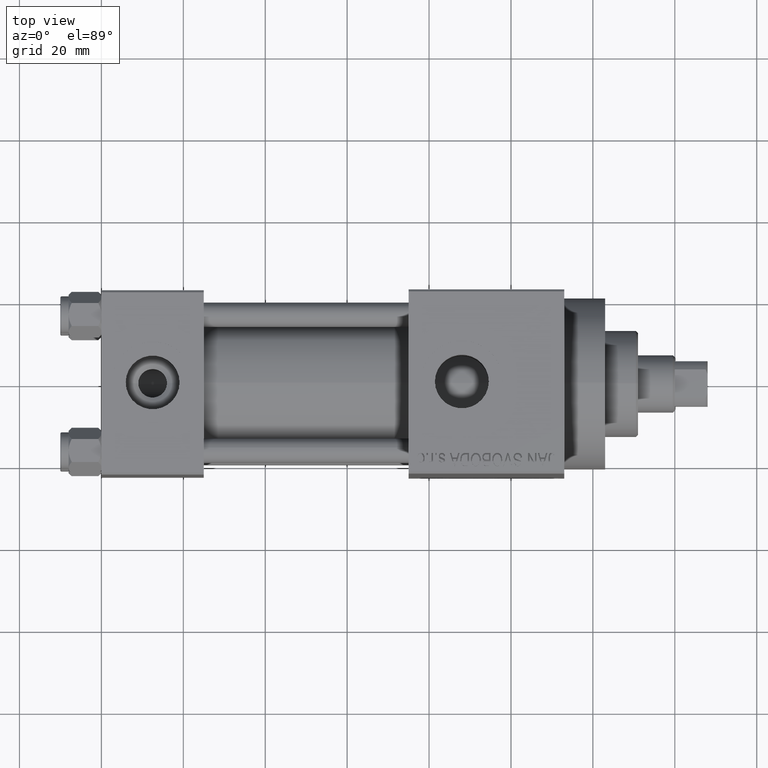
[diagram: clean part render]
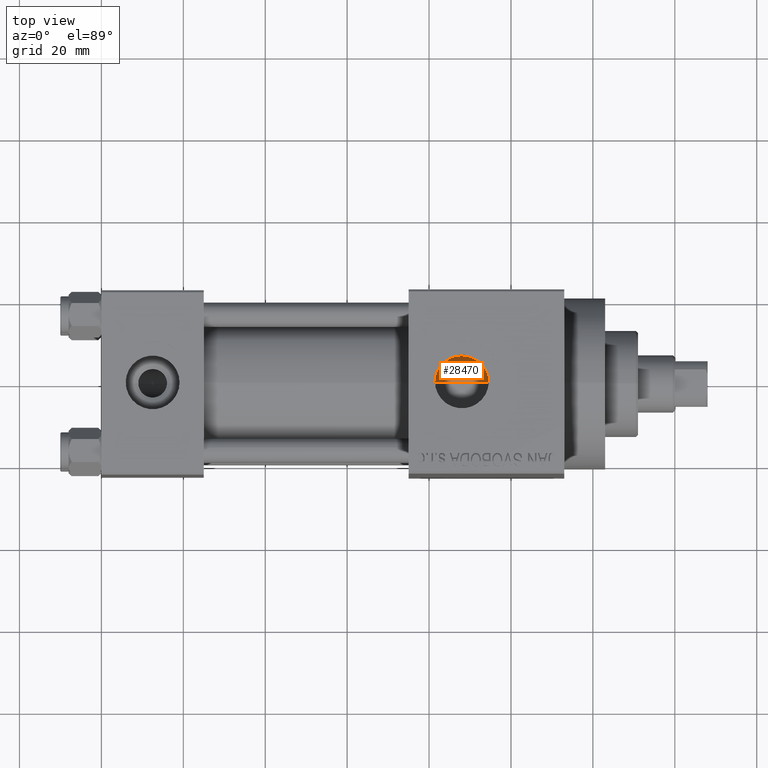
[diagram: same view with one face highlighted and labeled with its STEP entity id]
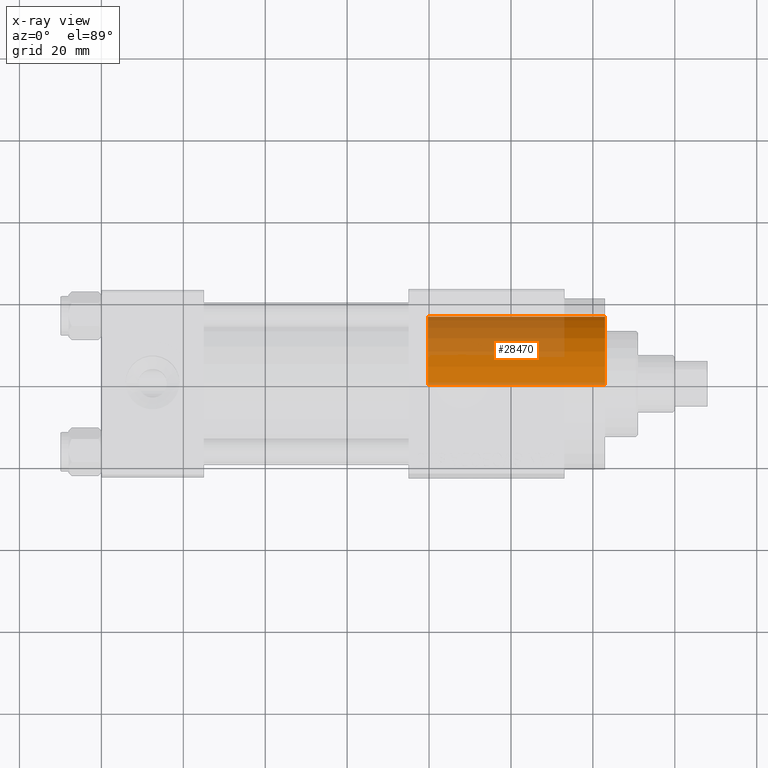
[diagram: x-ray of the same camera — body ghosted, the highlighted face saturated]
A machine part, top view. The second image highlights one B-rep face of the part: STEP entity #28470.
The next image is the same camera in x-ray: the body ghosted, the highlighted face saturated — about 48% of this face is hidden behind the body in this view.
In plain terms, the highlighted cylindrical surface (partial cylindrical patch) has radius 16.5 mm, axis along (-1, 0, 0).
Its self-contained STEP definition (entity closure, byte-faithful):
#130 = EDGE_CURVE ( 'NONE', #3150, #35293, #1239, .T. ) ;
#1239 = LINE ( 'NONE', #37232, #16180 ) ;
#2809 = ORIENTED_EDGE ( 'NONE', *, *, #12471, .T. ) ;
#3150 = VERTEX_POINT ( 'NONE', #39968 ) ;
#3209 = AXIS2_PLACEMENT_3D ( 'NONE', #20165, #42587, #9708 ) ;
#4365 = DIRECTION ( 'NONE',  ( 0.000000000000000000, 0.000000000000000000, 1.000000000000000000 ) ) ;
#7924 = DIRECTION ( 'NONE',  ( -1.000000000000000000, 0.000000000000000000, 0.000000000000000000 ) ) ;
#8130 = AXIS2_PLACEMENT_3D ( 'NONE', #34150, #33908, #7924 ) ;
#9336 = EDGE_CURVE ( 'NONE', #18921, #3150, #32635, .T. ) ;
#9708 = DIRECTION ( 'NONE',  ( 1.000000000000000000, 0.000000000000000000, 0.000000000000000000 ) ) ;
#10471 = LINE ( 'NONE', #16907, #26254 ) ;
#11059 = CARTESIAN_POINT ( 'NONE',  ( 0.000000000000000000, 0.000000000000000000, 43.25999999999999801 ) ) ;
#12471 = EDGE_CURVE ( 'NONE', #20975, #35293, #13856, .T. ) ;
#13856 = CIRCLE ( 'NONE', #3209, 16.50000000000000000 ) ;
#15541 = CYLINDRICAL_SURFACE ( 'NONE', #8130, 16.50000000000000000 ) ;
#16114 = ORIENTED_EDGE ( 'NONE', *, *, #23106, .T. ) ;
#16180 = VECTOR ( 'NONE', #22421, 1000.000000000000000 ) ;
#16907 = CARTESIAN_POINT ( 'NONE',  ( -16.50000000000000000, 0.000000000000000000, 43.25999999999999801 ) ) ;
#18921 = VERTEX_POINT ( 'NONE', #44209 ) ;
#20103 = ORIENTED_EDGE ( 'NONE', *, *, #9336, .F. ) ;
#20165 = CARTESIAN_POINT ( 'NONE',  ( 0.000000000000000000, 0.000000000000000000, 0.000000000000000000 ) ) ;
#20975 = VERTEX_POINT ( 'NONE', #31627 ) ;
#21599 = ORIENTED_EDGE ( 'NONE', *, *, #130, .F. ) ;
#22421 = DIRECTION ( 'NONE',  ( -0.000000000000000000, -0.000000000000000000, -1.000000000000000000 ) ) ;
#23106 = EDGE_CURVE ( 'NONE', #18921, #20975, #10471, .T. ) ;
#25745 = AXIS2_PLACEMENT_3D ( 'NONE', #11059, #4365, #47048 ) ;
#26254 = VECTOR ( 'NONE', #32376, 1000.000000000000000 ) ;
#28470 = ADVANCED_FACE ( 'NONE', ( #40586 ), #15541, .T. ) ;
#31627 = CARTESIAN_POINT ( 'NONE',  ( -16.50000000000000000, 0.000000000000000000, 0.000000000000000000 ) ) ;
#32376 = DIRECTION ( 'NONE',  ( -0.000000000000000000, -0.000000000000000000, -1.000000000000000000 ) ) ;
#32635 = CIRCLE ( 'NONE', #25745, 16.50000000000000000 ) ;
#33908 = DIRECTION ( 'NONE',  ( -0.000000000000000000, -0.000000000000000000, -1.000000000000000000 ) ) ;
#34150 = CARTESIAN_POINT ( 'NONE',  ( 0.000000000000000000, 0.000000000000000000, 43.25999999999999801 ) ) ;
#34568 = EDGE_LOOP ( 'NONE', ( #21599, #20103, #16114, #2809 ) ) ;
#35293 = VERTEX_POINT ( 'NONE', #39730 ) ;
#37232 = CARTESIAN_POINT ( 'NONE',  ( 16.50000000000000000, 2.020667218593133100E-15, 43.25999999999999801 ) ) ;
#39730 = CARTESIAN_POINT ( 'NONE',  ( 16.50000000000000000, 2.020667218593133100E-15, 0.000000000000000000 ) ) ;
#39968 = CARTESIAN_POINT ( 'NONE',  ( 16.50000000000000000, 2.020667218593133100E-15, 43.25999999999999801 ) ) ;
#40586 = FACE_OUTER_BOUND ( 'NONE', #34568, .T. ) ;
#42587 = DIRECTION ( 'NONE',  ( 0.000000000000000000, 0.000000000000000000, 1.000000000000000000 ) ) ;
#44209 = CARTESIAN_POINT ( 'NONE',  ( -16.50000000000000000, 0.000000000000000000, 43.25999999999999801 ) ) ;
#47048 = DIRECTION ( 'NONE',  ( 1.000000000000000000, 0.000000000000000000, 0.000000000000000000 ) ) ;